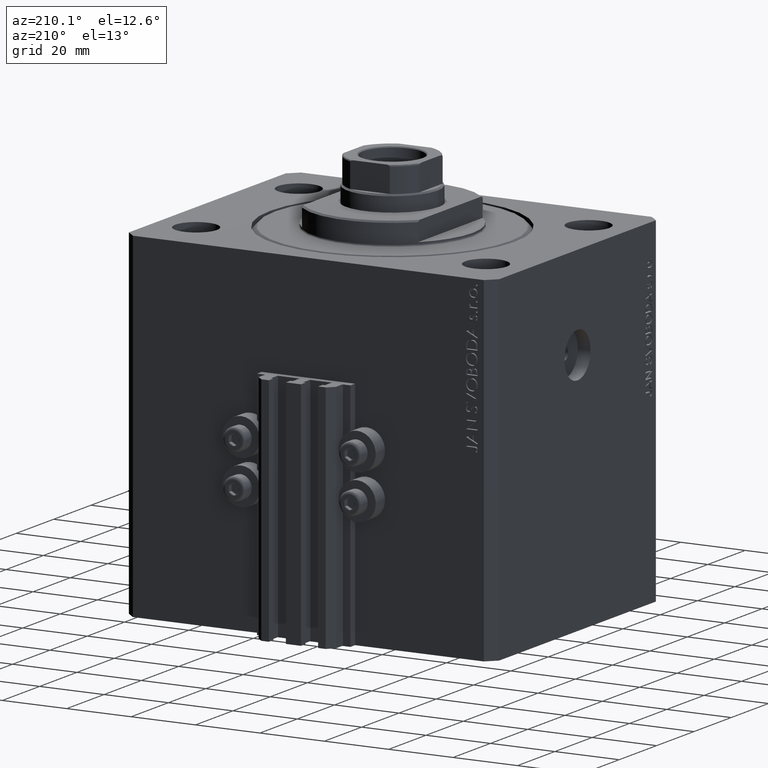
[diagram: clean part render]
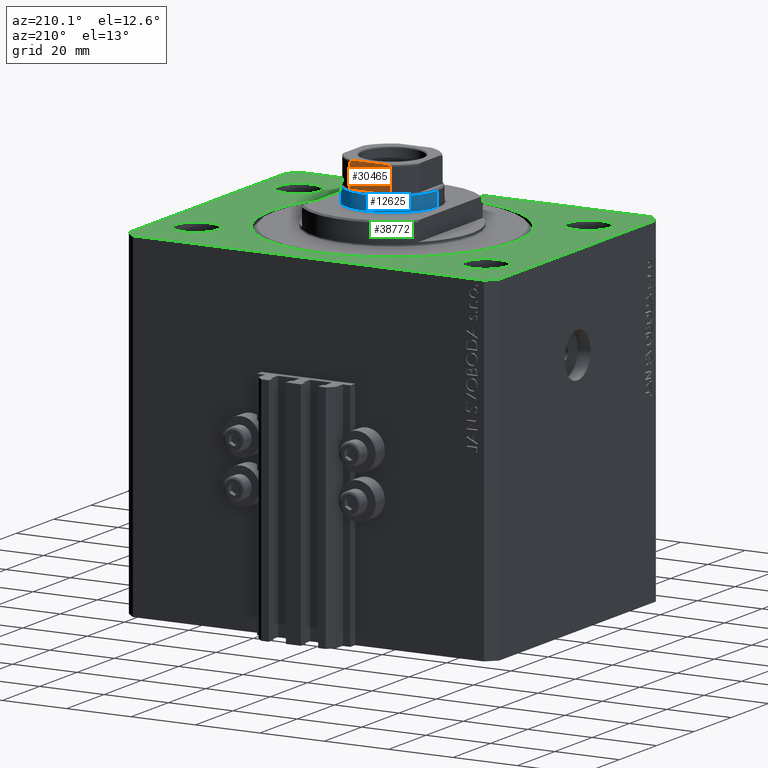
[diagram: same view with three faces highlighted in distinct colors, each labeled with its STEP entity id]
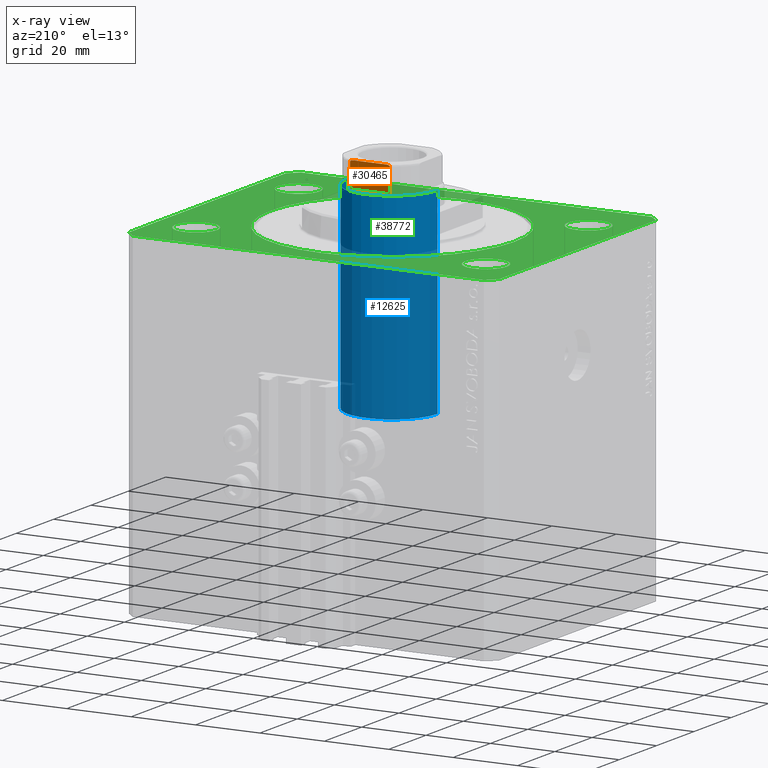
[diagram: x-ray of the same camera — body ghosted, the three highlighted faces saturated]
A machine part, auxiliary view with three faces highlighted in distinct colors.
The next image is the same camera in x-ray (body ghosted, the three faces saturated) — at least one of them is partly hidden behind the body in this view.
Their STEP definitions:

[orange] entity #30465 — the highlighted planar face has unit normal (0, -1, 0).
#1004 = CARTESIAN_POINT ( 'NONE',  ( 5.793822051191360956, 11.99999999999999822, 106.8841735219943558 ) ) ;
#1157 = VERTEX_POINT ( 'NONE', #28010 ) ;
#2150 = VECTOR ( 'NONE', #32037, 1000.000000000000000 ) ;
#3210 = CARTESIAN_POINT ( 'NONE',  ( -5.230795946637842420, 11.99999999999999645, 107.0000000000000426 ) ) ;
#4130 = CARTESIAN_POINT ( 'NONE',  ( 6.160856115322540738, 12.00000000000000355, 106.6149782197479112 ) ) ;
#4834 = CARTESIAN_POINT ( 'NONE',  ( 6.045866546018598520, 12.00000000000000178, 106.7461068616299826 ) ) ;
#5376 = VECTOR ( 'NONE', #34043, 1000.000000000000000 ) ;
#5383 = DIRECTION ( 'NONE',  ( -0.000000000000000000, -0.000000000000000000, 1.000000000000000000 ) ) ;
#6320 = DIRECTION ( 'NONE',  ( 7.228014483236695816E-17, -1.000000000000000000, 0.000000000000000000 ) ) ;
#6573 = ORIENTED_EDGE ( 'NONE', *, *, #36672, .F. ) ;
#6800 = CARTESIAN_POINT ( 'NONE',  ( -5.900889097622411761, 12.00000000000000178, 106.8429613869932666 ) ) ;
#6828 = CARTESIAN_POINT ( 'NONE',  ( 5.000000000000002665, 12.00000000000000000, 107.0000000000000142 ) ) ;
#7013 = CARTESIAN_POINT ( 'NONE',  ( -11.99999999999999822, 11.99999999999999822, 99.00000000000000000 ) ) ;
#7606 = ORIENTED_EDGE ( 'NONE', *, *, #17308, .T. ) ;
#7885 = VERTEX_POINT ( 'NONE', #6828 ) ;
#8967 = LINE ( 'NONE', #23114, #36139 ) ;
#9066 = CARTESIAN_POINT ( 'NONE',  ( 6.184658438426492211, 12.00000000000000178, 99.00000000000001421 ) ) ;
#11290 = CARTESIAN_POINT ( 'NONE',  ( 5.000000000000002665, 12.00000000000000000, 107.0000000000000142 ) ) ;
#13251 = FACE_OUTER_BOUND ( 'NONE', #41769, .T. ) ;
#13722 = AXIS2_PLACEMENT_3D ( 'NONE', #39126, #6320, #22348 ) ;
#17308 = EDGE_CURVE ( 'NONE', #43679, #1157, #38719, .T. ) ;
#17566 = CARTESIAN_POINT ( 'NONE',  ( -6.184658438426490434, 12.00000000000000000, 106.5000000000000142 ) ) ;
#17806 = CARTESIAN_POINT ( 'NONE',  ( -5.000000000000001776, 11.99999999999999822, 107.0000000000000142 ) ) ;
#18045 = CARTESIAN_POINT ( 'NONE',  ( -6.091003570118825650, 11.99999999999999822, 106.7080862465981426 ) ) ;
#18633 = VERTEX_POINT ( 'NONE', #42155 ) ;
#19712 = EDGE_CURVE ( 'NONE', #25414, #41485, #46520, .T. ) ;
#20311 = ORIENTED_EDGE ( 'NONE', *, *, #19712, .T. ) ;
#21127 = DIRECTION ( 'NONE',  ( -1.000000000000000000, -7.228014483236695816E-17, -0.000000000000000000 ) ) ;
#21395 = CARTESIAN_POINT ( 'NONE',  ( -5.792513940493508429, 11.99999999999999822, 106.8846382036009430 ) ) ;
#22310 = CARTESIAN_POINT ( 'NONE',  ( 5.903192932991098374, 12.00000000000000000, 106.8415152347680390 ) ) ;
#22348 = DIRECTION ( 'NONE',  ( 1.000000000000000000, 7.228014483236695816E-17, 0.000000000000000000 ) ) ;
#23028 = CARTESIAN_POINT ( 'NONE',  ( 5.230809753656818550, 11.99999999999999289, 106.9999999999999716 ) ) ;
#23114 = CARTESIAN_POINT ( 'NONE',  ( 6.184658438426490434, 11.99999999999999822, -0.001000000000001000089 ) ) ;
#24512 = PLANE ( 'NONE',  #13722 ) ;
#24514 = CARTESIAN_POINT ( 'NONE',  ( -6.046414714222231979, 11.99999999999999822, 106.7457872300293076 ) ) ;
#24557 = EDGE_CURVE ( 'NONE', #7885, #18633, #44332, .T. ) ;
#24757 = ORIENTED_EDGE ( 'NONE', *, *, #24557, .T. ) ;
#25073 = ORIENTED_EDGE ( 'NONE', *, *, #31802, .T. ) ;
#25414 = VERTEX_POINT ( 'NONE', #9066 ) ;
#25648 = CARTESIAN_POINT ( 'NONE',  ( -6.184658438426490434, 12.00000000000000000, -0.001000000000001000089 ) ) ;
#25900 = CARTESIAN_POINT ( 'NONE',  ( 5.459934723612541951, 12.00000000000000000, 106.9794964115812377 ) ) ;
#26307 = EDGE_CURVE ( 'NONE', #7885, #1157, #39700, .T. ) ;
#27119 = ORIENTED_EDGE ( 'NONE', *, *, #26307, .F. ) ;
#28010 = CARTESIAN_POINT ( 'NONE',  ( -5.000000000000001776, 11.99999999999999822, 107.0000000000000142 ) ) ;
#30465 = ADVANCED_FACE ( 'NONE', ( #13251 ), #24512, .F. ) ;
#31802 = EDGE_CURVE ( 'NONE', #41485, #43679, #33567, .T. ) ;
#32037 = DIRECTION ( 'NONE',  ( -1.000000000000000000, -7.228014483236695816E-17, -0.000000000000000000 ) ) ;
#32173 = CARTESIAN_POINT ( 'NONE',  ( -6.161088279078732910, 12.00000000000000000, 106.6146234191510302 ) ) ;
#33020 = CARTESIAN_POINT ( 'NONE',  ( -6.184658438426489546, 12.00000000000000000, 99.00000000000001421 ) ) ;
#33567 = LINE ( 'NONE', #25648, #5376 ) ;
#33578 = CARTESIAN_POINT ( 'NONE',  ( 6.184658438426495763, 12.00000000000000355, 106.5589821493407783 ) ) ;
#34043 = DIRECTION ( 'NONE',  ( -0.000000000000000000, -0.000000000000000000, 1.000000000000000000 ) ) ;
#36021 = CARTESIAN_POINT ( 'NONE',  ( -5.458892612163326774, 11.99999999999999822, 106.9796099716497793 ) ) ;
#36139 = VECTOR ( 'NONE', #5383, 1000.000000000000000 ) ;
#36672 = EDGE_CURVE ( 'NONE', #25414, #18633, #8967, .T. ) ;
#36932 = CARTESIAN_POINT ( 'NONE',  ( 6.091027642353962435, 12.00000000000000355, 106.7080088155617545 ) ) ;
#38719 = B_SPLINE_CURVE_WITH_KNOTS ( 'NONE', 3,
 ( #17566, #39841, #32173, #18045, #24514, #6800, #21395, #36021, #3210, #17806 ),
 .UNSPECIFIED., .F., .F.,
 ( 4, 2, 2, 2, 4 ),
 ( 0.000000000000000000, 0.0001740189231935435705, 0.0003480378463870871411, 0.0006960756927741721138, 0.001392151385548330567 ),
 .UNSPECIFIED. ) ;
#39126 = CARTESIAN_POINT ( 'NONE',  ( -11.99999999999999822, 11.99999999999999822, 107.0000000000000142 ) ) ;
#39700 = LINE ( 'NONE', #46884, #2150 ) ;
#39841 = CARTESIAN_POINT ( 'NONE',  ( -6.184658438426491323, 12.00000000000000000, 106.5589344020394265 ) ) ;
#41485 = VERTEX_POINT ( 'NONE', #33020 ) ;
#41769 = EDGE_LOOP ( 'NONE', ( #27119, #24757, #6573, #20311, #25073, #7606 ) ) ;
#42155 = CARTESIAN_POINT ( 'NONE',  ( 6.184658438426490434, 11.99999999999999822, 106.5000000000000142 ) ) ;
#43574 = VECTOR ( 'NONE', #21127, 1000.000000000000000 ) ;
#43679 = VERTEX_POINT ( 'NONE', #47360 ) ;
#44332 = B_SPLINE_CURVE_WITH_KNOTS ( 'NONE', 3,
 ( #11290, #23028, #25900, #1004, #22310, #4834, #36932, #4130, #33578, #44595 ),
 .UNSPECIFIED., .F., .F.,
 ( 4, 2, 2, 2, 4 ),
 ( 1.734723475976807094E-18, 0.0006877128613558521411, 0.001031569292033771706, 0.001203497507372732573, 0.001375425722711693440 ),
 .UNSPECIFIED. ) ;
#44595 = CARTESIAN_POINT ( 'NONE',  ( 6.184658438426490434, 11.99999999999999822, 106.5000000000000142 ) ) ;
#46520 = LINE ( 'NONE', #7013, #43574 ) ;
#46884 = CARTESIAN_POINT ( 'NONE',  ( -11.99999999999999822, 11.99999999999999822, 107.0000000000000142 ) ) ;
#47360 = CARTESIAN_POINT ( 'NONE',  ( -6.184658438426490434, 12.00000000000000000, 106.5000000000000142 ) ) ;

[blue] entity #12625 — the highlighted cylindrical surface (partial cylindrical patch) has radius 14 mm, axis along (-0, -0, -1).
#352 = EDGE_CURVE ( 'NONE', #30998, #35408, #10084, .T. ) ;
#1070 = DIRECTION ( 'NONE',  ( -0.000000000000000000, -0.000000000000000000, -1.000000000000000000 ) ) ;
#1185 = EDGE_CURVE ( 'NONE', #2544, #1382, #42423, .T. ) ;
#1382 = VERTEX_POINT ( 'NONE', #37346 ) ;
#2302 = EDGE_CURVE ( 'NONE', #35408, #2544, #41185, .T. ) ;
#2544 = VERTEX_POINT ( 'NONE', #44488 ) ;
#5361 = FACE_OUTER_BOUND ( 'NONE', #40609, .T. ) ;
#8367 = CARTESIAN_POINT ( 'NONE',  ( 14.00000000000000000, 1.714505518806294638E-15, 99.00000000000000000 ) ) ;
#9766 = ORIENTED_EDGE ( 'NONE', *, *, #34747, .F. ) ;
#9964 = ORIENTED_EDGE ( 'NONE', *, *, #1185, .T. ) ;
#10084 = CIRCLE ( 'NONE', #39905, 14.00000000000000000 ) ;
#10285 = LINE ( 'NONE', #24890, #18465 ) ;
#10929 = DIRECTION ( 'NONE',  ( 0.000000000000000000, 0.000000000000000000, -1.000000000000000000 ) ) ;
#12625 = ADVANCED_FACE ( 'NONE', ( #5361 ), #34352, .T. ) ;
#12667 = ORIENTED_EDGE ( 'NONE', *, *, #2302, .T. ) ;
#13559 = AXIS2_PLACEMENT_3D ( 'NONE', #23324, #1070, #30740 ) ;
#15474 = DIRECTION ( 'NONE',  ( 1.000000000000000000, 0.000000000000000000, 0.000000000000000000 ) ) ;
#17779 = CARTESIAN_POINT ( 'NONE',  ( 14.00000000000000000, 1.714505518806294638E-15, 98.50000000000000000 ) ) ;
#18103 = ORIENTED_EDGE ( 'NONE', *, *, #352, .T. ) ;
#18465 = VECTOR ( 'NONE', #39506, 1000.000000000000000 ) ;
#22767 = CARTESIAN_POINT ( 'NONE',  ( -14.00000000000000000, 0.000000000000000000, 98.50000000000000000 ) ) ;
#23324 = CARTESIAN_POINT ( 'NONE',  ( 0.000000000000000000, 0.000000000000000000, 99.00000000000000000 ) ) ;
#24890 = CARTESIAN_POINT ( 'NONE',  ( -14.00000000000000000, 0.000000000000000000, 99.00000000000000000 ) ) ;
#27805 = VECTOR ( 'NONE', #30859, 1000.000000000000000 ) ;
#28480 = DIRECTION ( 'NONE',  ( 0.000000000000000000, 0.000000000000000000, 1.000000000000000000 ) ) ;
#30740 = DIRECTION ( 'NONE',  ( -1.000000000000000000, 0.000000000000000000, 0.000000000000000000 ) ) ;
#30859 = DIRECTION ( 'NONE',  ( -0.000000000000000000, -0.000000000000000000, -1.000000000000000000 ) ) ;
#30998 = VERTEX_POINT ( 'NONE', #22767 ) ;
#31601 = CARTESIAN_POINT ( 'NONE',  ( 0.000000000000000000, 0.000000000000000000, 37.00000000000000000 ) ) ;
#32493 = AXIS2_PLACEMENT_3D ( 'NONE', #31601, #28480, #39500 ) ;
#33694 = CARTESIAN_POINT ( 'NONE',  ( 0.000000000000000000, 0.000000000000000000, 98.50000000000000000 ) ) ;
#34352 = CYLINDRICAL_SURFACE ( 'NONE', #13559, 14.00000000000000000 ) ;
#34747 = EDGE_CURVE ( 'NONE', #30998, #1382, #10285, .T. ) ;
#35408 = VERTEX_POINT ( 'NONE', #17779 ) ;
#37346 = CARTESIAN_POINT ( 'NONE',  ( -14.00000000000000000, 0.000000000000000000, 37.00000000000000000 ) ) ;
#39500 = DIRECTION ( 'NONE',  ( 1.000000000000000000, 0.000000000000000000, 0.000000000000000000 ) ) ;
#39506 = DIRECTION ( 'NONE',  ( -0.000000000000000000, -0.000000000000000000, -1.000000000000000000 ) ) ;
#39905 = AXIS2_PLACEMENT_3D ( 'NONE', #33694, #10929, #15474 ) ;
#40609 = EDGE_LOOP ( 'NONE', ( #18103, #12667, #9964, #9766 ) ) ;
#41185 = LINE ( 'NONE', #8367, #27805 ) ;
#42423 = CIRCLE ( 'NONE', #32493, 14.00000000000000000 ) ;
#44488 = CARTESIAN_POINT ( 'NONE',  ( 14.00000000000000000, 1.714505518806294638E-15, 37.00000000000000000 ) ) ;

[green] entity #38772 — the highlighted planar face has unit normal (0, 0, 1).
#384 = ORIENTED_EDGE ( 'NONE', *, *, #9431, .T. ) ;
#387 = AXIS2_PLACEMENT_3D ( 'NONE', #13862, #45981, #10038 ) ;
#941 = DIRECTION ( 'NONE',  ( 6.443258625056715108E-15, 1.000000000000000000, 0.000000000000000000 ) ) ;
#1176 = EDGE_CURVE ( 'NONE', #24613, #44365, #27875, .T. ) ;
#1832 = VERTEX_POINT ( 'NONE', #4370 ) ;
#1917 = CARTESIAN_POINT ( 'NONE',  ( -54.49999999999999289, 45.00000000000000000, 0.000000000000000000 ) ) ;
#2177 = LINE ( 'NONE', #31148, #5832 ) ;
#2411 = ORIENTED_EDGE ( 'NONE', *, *, #21314, .F. ) ;
#2721 = DIRECTION ( 'NONE',  ( 1.000000000000000000, 0.000000000000000000, 0.000000000000000000 ) ) ;
#3378 = VERTEX_POINT ( 'NONE', #23406 ) ;
#3391 = ORIENTED_EDGE ( 'NONE', *, *, #26313, .T. ) ;
#3720 = CARTESIAN_POINT ( 'NONE',  ( -57.50000000000000711, -42.00000000000000711, 0.000000000000000000 ) ) ;
#3979 = VERTEX_POINT ( 'NONE', #34088 ) ;
#4282 = ORIENTED_EDGE ( 'NONE', *, *, #29558, .F. ) ;
#4370 = CARTESIAN_POINT ( 'NONE',  ( -57.49999999999998579, 42.00000000000000711, 0.000000000000000000 ) ) ;
#4432 = LINE ( 'NONE', #3720, #4962 ) ;
#4599 = ORIENTED_EDGE ( 'NONE', *, *, #22641, .F. ) ;
#4962 = VECTOR ( 'NONE', #18556, 1000.000000000000114 ) ;
#5244 = CIRCLE ( 'NONE', #11353, 6.499999999999999112 ) ;
#5330 = EDGE_LOOP ( 'NONE', ( #2411, #45663 ) ) ;
#5829 = CARTESIAN_POINT ( 'NONE',  ( 45.00000000000000000, 27.49999999999999289, 0.000000000000000000 ) ) ;
#5832 = VECTOR ( 'NONE', #5998, 1000.000000000000000 ) ;
#5998 = DIRECTION ( 'NONE',  ( -2.478176394252581141E-16, -1.000000000000000000, 0.000000000000000000 ) ) ;
#6185 = CARTESIAN_POINT ( 'NONE',  ( 54.50000000000059686, 45.00000000000002842, 0.000000000000000000 ) ) ;
#6304 = EDGE_CURVE ( 'NONE', #38941, #38786, #27941, .T. ) ;
#6312 = ORIENTED_EDGE ( 'NONE', *, *, #1176, .F. ) ;
#6637 = FACE_BOUND ( 'NONE', #44013, .T. ) ;
#6966 = CARTESIAN_POINT ( 'NONE',  ( 0.000000000000000000, 0.000000000000000000, 0.000000000000000000 ) ) ;
#7002 = CARTESIAN_POINT ( 'NONE',  ( 38.00000000000000000, 0.000000000000000000, 0.000000000000000000 ) ) ;
#7109 = DIRECTION ( 'NONE',  ( 0.000000000000000000, 0.000000000000000000, 1.000000000000000000 ) ) ;
#7198 = DIRECTION ( 'NONE',  ( 1.000000000000000000, 0.000000000000000000, 0.000000000000000000 ) ) ;
#7225 = CARTESIAN_POINT ( 'NONE',  ( -38.00000000000000000, 4.653657836759941941E-15, 0.000000000000000000 ) ) ;
#7276 = CARTESIAN_POINT ( 'NONE',  ( -44.99999999999998579, -27.50000000000000355, 0.000000000000000000 ) ) ;
#7291 = CARTESIAN_POINT ( 'NONE',  ( 54.50000000000000711, -44.99999999999998579, 0.000000000000000000 ) ) ;
#7552 = CIRCLE ( 'NONE', #43512, 38.00000000000000000 ) ;
#8341 = EDGE_CURVE ( 'NONE', #1832, #44645, #2177, .T. ) ;
#8777 = EDGE_CURVE ( 'NONE', #42846, #43482, #23440, .T. ) ;
#9431 = EDGE_CURVE ( 'NONE', #31082, #40143, #30527, .T. ) ;
#9484 = CARTESIAN_POINT ( 'NONE',  ( 54.50000000000000711, -44.99999999999998579, 0.000000000000000000 ) ) ;
#9603 = DIRECTION ( 'NONE',  ( 0.000000000000000000, 0.000000000000000000, 1.000000000000000000 ) ) ;
#9739 = CIRCLE ( 'NONE', #42649, 6.499999999999999112 ) ;
#9952 = EDGE_LOOP ( 'NONE', ( #3391, #43313, #21825, #28047, #10201, #41710, #15753, #384 ) ) ;
#10038 = DIRECTION ( 'NONE',  ( 1.000000000000000000, 0.000000000000000000, 0.000000000000000000 ) ) ;
#10201 = ORIENTED_EDGE ( 'NONE', *, *, #24969, .T. ) ;
#11078 = ORIENTED_EDGE ( 'NONE', *, *, #36200, .F. ) ;
#11257 = DIRECTION ( 'NONE',  ( 0.000000000000000000, 0.000000000000000000, 1.000000000000000000 ) ) ;
#11301 = LINE ( 'NONE', #43647, #41151 ) ;
#11304 = CARTESIAN_POINT ( 'NONE',  ( -54.50000000000000711, -45.00000000000000000, 0.000000000000000000 ) ) ;
#11353 = AXIS2_PLACEMENT_3D ( 'NONE', #7276, #36493, #44869 ) ;
#11420 = CIRCLE ( 'NONE', #38197, 6.499999999999999112 ) ;
#12101 = VECTOR ( 'NONE', #27734, 1000.000000000000000 ) ;
#12558 = ORIENTED_EDGE ( 'NONE', *, *, #17343, .F. ) ;
#12565 = EDGE_CURVE ( 'NONE', #3378, #30065, #9739, .T. ) ;
#13305 = CARTESIAN_POINT ( 'NONE',  ( 57.50000000000000711, -41.99999999999998579, 0.000000000000000000 ) ) ;
#13862 = CARTESIAN_POINT ( 'NONE',  ( 44.99999999999998579, -27.50000000000000355, 0.000000000000000000 ) ) ;
#13876 = EDGE_CURVE ( 'NONE', #44619, #45619, #7552, .T. ) ;
#13877 = CARTESIAN_POINT ( 'NONE',  ( 51.50000000000000000, 27.49999999999999289, 0.000000000000000000 ) ) ;
#14018 = EDGE_CURVE ( 'NONE', #14294, #29183, #34660, .T. ) ;
#14294 = VERTEX_POINT ( 'NONE', #7291 ) ;
#14877 = CARTESIAN_POINT ( 'NONE',  ( -57.50000000000000711, -42.00000000000000711, 0.000000000000000000 ) ) ;
#14958 = DIRECTION ( 'NONE',  ( 0.000000000000000000, 0.000000000000000000, 1.000000000000000000 ) ) ;
#15166 = DIRECTION ( 'NONE',  ( 0.000000000000000000, 0.000000000000000000, 1.000000000000000000 ) ) ;
#15753 = ORIENTED_EDGE ( 'NONE', *, *, #24047, .T. ) ;
#16203 = CIRCLE ( 'NONE', #29230, 38.00000000000000000 ) ;
#17198 = CARTESIAN_POINT ( 'NONE',  ( 0.000000000000000000, 0.000000000000000000, 0.000000000000000000 ) ) ;
#17343 = EDGE_CURVE ( 'NONE', #30065, #3378, #26617, .T. ) ;
#17656 = CARTESIAN_POINT ( 'NONE',  ( 38.50000000000000000, 27.49999999999999289, 0.000000000000000000 ) ) ;
#17794 = ORIENTED_EDGE ( 'NONE', *, *, #12565, .F. ) ;
#18169 = DIRECTION ( 'NONE',  ( 1.000000000000000000, 0.000000000000000000, 0.000000000000000000 ) ) ;
#18359 = FACE_BOUND ( 'NONE', #5330, .T. ) ;
#18556 = DIRECTION ( 'NONE',  ( 0.7071067811865491270, -0.7071067811865459074, 0.000000000000000000 ) ) ;
#19308 = CARTESIAN_POINT ( 'NONE',  ( -38.49999999999998579, -27.50000000000000355, 0.000000000000000000 ) ) ;
#19879 = CARTESIAN_POINT ( 'NONE',  ( -45.00000000000000000, 27.49999999999999645, 0.000000000000000000 ) ) ;
#20437 = CARTESIAN_POINT ( 'NONE',  ( 45.00000000000000000, 27.49999999999999289, 0.000000000000000000 ) ) ;
#21262 = AXIS2_PLACEMENT_3D ( 'NONE', #19879, #15166, #33136 ) ;
#21314 = EDGE_CURVE ( 'NONE', #43482, #42846, #33676, .T. ) ;
#21467 = CARTESIAN_POINT ( 'NONE',  ( -51.49999999999998579, -27.50000000000000355, 0.000000000000000000 ) ) ;
#21825 = ORIENTED_EDGE ( 'NONE', *, *, #8341, .T. ) ;
#22195 = EDGE_LOOP ( 'NONE', ( #11078, #44104 ) ) ;
#22398 = DIRECTION ( 'NONE',  ( -0.7071067811865369146, 0.7071067811865581199, 0.000000000000000000 ) ) ;
#22641 = EDGE_CURVE ( 'NONE', #38786, #38941, #5244, .T. ) ;
#22693 = AXIS2_PLACEMENT_3D ( 'NONE', #5829, #23789, #38407 ) ;
#23406 = CARTESIAN_POINT ( 'NONE',  ( -51.50000000000000000, 27.49999999999999645, 0.000000000000000000 ) ) ;
#23440 = CIRCLE ( 'NONE', #22693, 6.499999999999999112 ) ;
#23789 = DIRECTION ( 'NONE',  ( 0.000000000000000000, 0.000000000000000000, 1.000000000000000000 ) ) ;
#23869 = CARTESIAN_POINT ( 'NONE',  ( -38.50000000000000000, 27.49999999999999645, 0.000000000000000000 ) ) ;
#24047 = EDGE_CURVE ( 'NONE', #29183, #31082, #41172, .T. ) ;
#24210 = DIRECTION ( 'NONE',  ( 1.000000000000000000, 0.000000000000000000, 0.000000000000000000 ) ) ;
#24285 = EDGE_LOOP ( 'NONE', ( #12558, #17794 ) ) ;
#24613 = VERTEX_POINT ( 'NONE', #34052 ) ;
#24969 = EDGE_CURVE ( 'NONE', #43265, #14294, #11301, .T. ) ;
#25227 = AXIS2_PLACEMENT_3D ( 'NONE', #20437, #45610, #2721 ) ;
#25776 = FACE_OUTER_BOUND ( 'NONE', #9952, .T. ) ;
#26215 = CARTESIAN_POINT ( 'NONE',  ( -45.00000000000000000, 27.49999999999999645, 0.000000000000000000 ) ) ;
#26313 = EDGE_CURVE ( 'NONE', #40143, #3979, #38762, .T. ) ;
#26617 = CIRCLE ( 'NONE', #21262, 6.499999999999999112 ) ;
#27734 = DIRECTION ( 'NONE',  ( -1.000000000000000000, -2.546383084002638829E-16, 0.000000000000000000 ) ) ;
#27875 = CIRCLE ( 'NONE', #387, 6.499999999999999112 ) ;
#27941 = CIRCLE ( 'NONE', #45568, 6.499999999999999112 ) ;
#28047 = ORIENTED_EDGE ( 'NONE', *, *, #46247, .T. ) ;
#29183 = VERTEX_POINT ( 'NONE', #13305 ) ;
#29230 = AXIS2_PLACEMENT_3D ( 'NONE', #17198, #46178, #39002 ) ;
#29558 = EDGE_CURVE ( 'NONE', #44365, #24613, #11420, .T. ) ;
#29989 = AXIS2_PLACEMENT_3D ( 'NONE', #32246, #7109, #40399 ) ;
#30065 = VERTEX_POINT ( 'NONE', #23869 ) ;
#30527 = LINE ( 'NONE', #37488, #36436 ) ;
#31010 = EDGE_CURVE ( 'NONE', #3979, #1832, #38557, .T. ) ;
#31082 = VERTEX_POINT ( 'NONE', #34036 ) ;
#31148 = CARTESIAN_POINT ( 'NONE',  ( -57.49999999999998579, 42.00000000000000711, 0.000000000000000000 ) ) ;
#31254 = VECTOR ( 'NONE', #42538, 1000.000000000000000 ) ;
#31274 = EDGE_LOOP ( 'NONE', ( #6312, #4282 ) ) ;
#32246 = CARTESIAN_POINT ( 'NONE',  ( 0.000000000000000000, 0.000000000000000000, 0.000000000000000000 ) ) ;
#32541 = DIRECTION ( 'NONE',  ( 0.000000000000000000, 0.000000000000000000, 1.000000000000000000 ) ) ;
#32720 = FACE_BOUND ( 'NONE', #31274, .T. ) ;
#32970 = PLANE ( 'NONE',  #29989 ) ;
#33136 = DIRECTION ( 'NONE',  ( 1.000000000000000000, 0.000000000000000000, 0.000000000000000000 ) ) ;
#33676 = CIRCLE ( 'NONE', #25227, 6.499999999999999112 ) ;
#34036 = CARTESIAN_POINT ( 'NONE',  ( 57.50000000000055422, 41.99999999999997868, 0.000000000000000000 ) ) ;
#34052 = CARTESIAN_POINT ( 'NONE',  ( 51.49999999999998579, -27.50000000000000355, 0.000000000000000000 ) ) ;
#34088 = CARTESIAN_POINT ( 'NONE',  ( -54.49999999999999289, 45.00000000000000000, 0.000000000000000000 ) ) ;
#34660 = LINE ( 'NONE', #9484, #31254 ) ;
#36200 = EDGE_CURVE ( 'NONE', #45619, #44619, #16203, .T. ) ;
#36436 = VECTOR ( 'NONE', #22398, 1000.000000000000000 ) ;
#36493 = DIRECTION ( 'NONE',  ( 0.000000000000000000, 0.000000000000000000, 1.000000000000000000 ) ) ;
#36548 = ORIENTED_EDGE ( 'NONE', *, *, #6304, .F. ) ;
#36622 = CARTESIAN_POINT ( 'NONE',  ( -44.99999999999998579, -27.50000000000000355, 0.000000000000000000 ) ) ;
#37488 = CARTESIAN_POINT ( 'NONE',  ( 57.50000000000055422, 41.99999999999997868, 0.000000000000000000 ) ) ;
#38197 = AXIS2_PLACEMENT_3D ( 'NONE', #46012, #9603, #24210 ) ;
#38407 = DIRECTION ( 'NONE',  ( 1.000000000000000000, 0.000000000000000000, 0.000000000000000000 ) ) ;
#38557 = LINE ( 'NONE', #1917, #43628 ) ;
#38762 = LINE ( 'NONE', #6185, #12101 ) ;
#38772 = ADVANCED_FACE ( 'NONE', ( #39440, #6637, #32720, #18359, #46859, #25776 ), #32970, .T. ) ;
#38786 = VERTEX_POINT ( 'NONE', #21467 ) ;
#38941 = VERTEX_POINT ( 'NONE', #19308 ) ;
#39002 = DIRECTION ( 'NONE',  ( 1.000000000000000000, 0.000000000000000000, 0.000000000000000000 ) ) ;
#39440 = FACE_BOUND ( 'NONE', #22195, .T. ) ;
#40143 = VERTEX_POINT ( 'NONE', #43939 ) ;
#40399 = DIRECTION ( 'NONE',  ( 1.000000000000000000, 0.000000000000000000, -0.000000000000000000 ) ) ;
#41151 = VECTOR ( 'NONE', #44602, 1000.000000000000000 ) ;
#41172 = LINE ( 'NONE', #46092, #44292 ) ;
#41347 = CARTESIAN_POINT ( 'NONE',  ( 38.49999999999998579, -27.50000000000000355, 0.000000000000000000 ) ) ;
#41451 = DIRECTION ( 'NONE',  ( -0.7071067811865483499, -0.7071067811865466846, 0.000000000000000000 ) ) ;
#41710 = ORIENTED_EDGE ( 'NONE', *, *, #14018, .T. ) ;
#42538 = DIRECTION ( 'NONE',  ( 0.7071067811865483499, 0.7071067811865466846, 0.000000000000000000 ) ) ;
#42649 = AXIS2_PLACEMENT_3D ( 'NONE', #26215, #14958, #44183 ) ;
#42846 = VERTEX_POINT ( 'NONE', #17656 ) ;
#43265 = VERTEX_POINT ( 'NONE', #11304 ) ;
#43313 = ORIENTED_EDGE ( 'NONE', *, *, #31010, .T. ) ;
#43482 = VERTEX_POINT ( 'NONE', #13877 ) ;
#43512 = AXIS2_PLACEMENT_3D ( 'NONE', #6966, #11257, #7198 ) ;
#43628 = VECTOR ( 'NONE', #41451, 1000.000000000000000 ) ;
#43647 = CARTESIAN_POINT ( 'NONE',  ( -54.50000000000000711, -45.00000000000000000, 0.000000000000000000 ) ) ;
#43939 = CARTESIAN_POINT ( 'NONE',  ( 54.50000000000059686, 45.00000000000002842, 0.000000000000000000 ) ) ;
#44013 = EDGE_LOOP ( 'NONE', ( #36548, #4599 ) ) ;
#44104 = ORIENTED_EDGE ( 'NONE', *, *, #13876, .F. ) ;
#44183 = DIRECTION ( 'NONE',  ( 1.000000000000000000, 0.000000000000000000, 0.000000000000000000 ) ) ;
#44292 = VECTOR ( 'NONE', #941, 1000.000000000000000 ) ;
#44365 = VERTEX_POINT ( 'NONE', #41347 ) ;
#44602 = DIRECTION ( 'NONE',  ( 1.000000000000000000, 1.273191542001326317E-16, 0.000000000000000000 ) ) ;
#44619 = VERTEX_POINT ( 'NONE', #7225 ) ;
#44645 = VERTEX_POINT ( 'NONE', #14877 ) ;
#44869 = DIRECTION ( 'NONE',  ( 1.000000000000000000, 0.000000000000000000, 0.000000000000000000 ) ) ;
#45568 = AXIS2_PLACEMENT_3D ( 'NONE', #36622, #32541, #18169 ) ;
#45610 = DIRECTION ( 'NONE',  ( 0.000000000000000000, 0.000000000000000000, 1.000000000000000000 ) ) ;
#45619 = VERTEX_POINT ( 'NONE', #7002 ) ;
#45663 = ORIENTED_EDGE ( 'NONE', *, *, #8777, .F. ) ;
#45981 = DIRECTION ( 'NONE',  ( 0.000000000000000000, 0.000000000000000000, 1.000000000000000000 ) ) ;
#46012 = CARTESIAN_POINT ( 'NONE',  ( 44.99999999999998579, -27.50000000000000355, 0.000000000000000000 ) ) ;
#46092 = CARTESIAN_POINT ( 'NONE',  ( 57.50000000000000711, -41.99999999999998579, 0.000000000000000000 ) ) ;
#46178 = DIRECTION ( 'NONE',  ( 0.000000000000000000, 0.000000000000000000, 1.000000000000000000 ) ) ;
#46247 = EDGE_CURVE ( 'NONE', #44645, #43265, #4432, .T. ) ;
#46859 = FACE_BOUND ( 'NONE', #24285, .T. ) ;